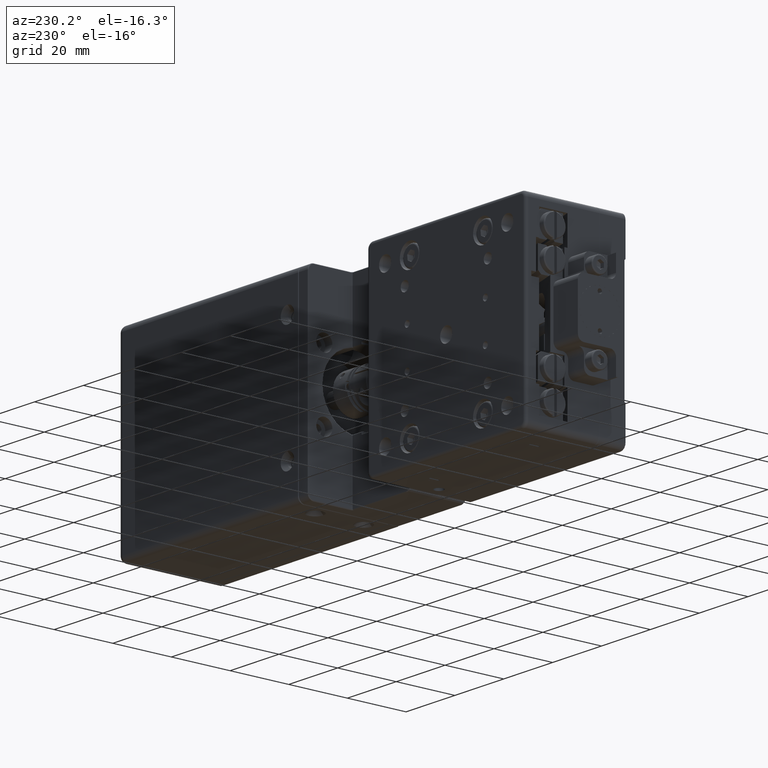
[diagram: clean part render]
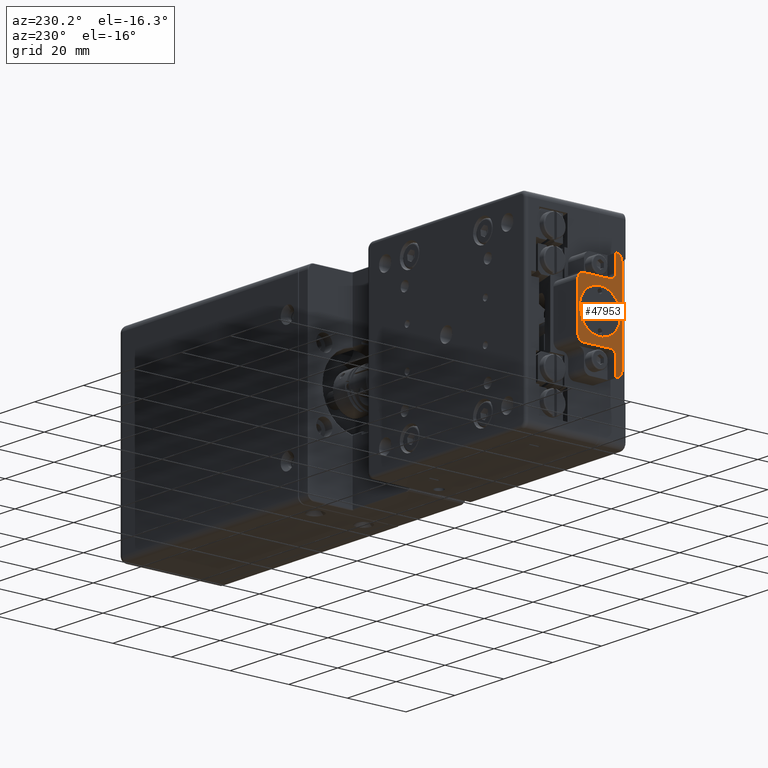
[diagram: same view with one face highlighted and labeled with its STEP entity id]
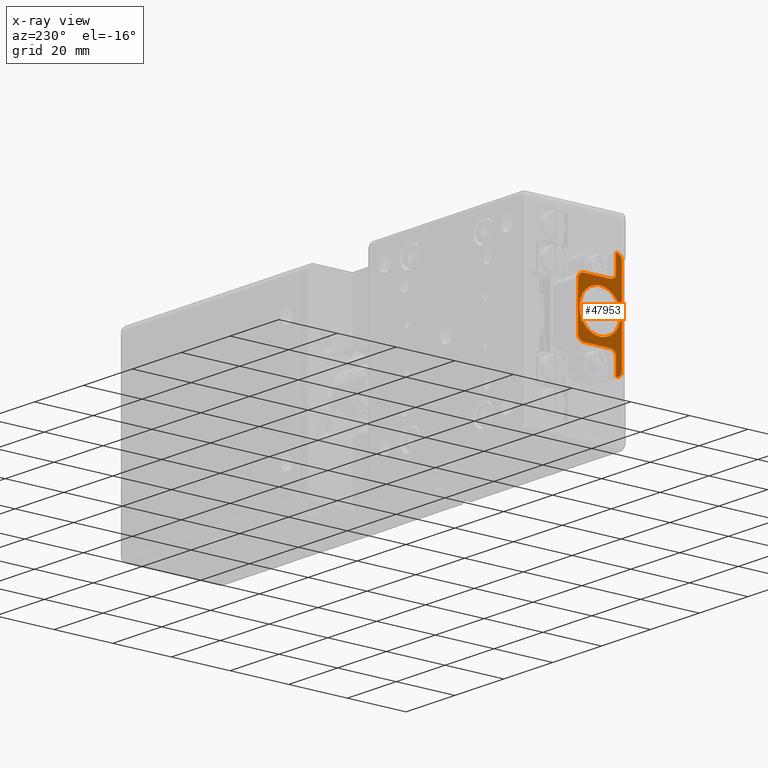
[diagram: x-ray of the same camera — body ghosted, the highlighted face saturated]
A machine part, auxiliary view. The second image highlights one B-rep face of the part: STEP entity #47953.
The next image is the same camera in x-ray: the body ghosted, the highlighted face saturated — about 0% of this face is hidden behind the body in this view.
In plain terms, the highlighted planar face has unit normal (-1, 0, 0).
Its self-contained STEP definition (entity closure, byte-faithful):
#531 = VERTEX_POINT ( 'NONE', #26926 ) ;
#746 = AXIS2_PLACEMENT_3D ( 'NONE', #5061, #44296, #52783 ) ;
#1082 = EDGE_CURVE ( 'NONE', #52681, #42280, #14984, .T. ) ;
#1390 = LINE ( 'NONE', #6464, #43669 ) ;
#2243 = DIRECTION ( 'NONE',  ( -1.000000000000000000, 0.000000000000000000, 0.000000000000000000 ) ) ;
#3576 = CARTESIAN_POINT ( 'NONE',  ( -146.9861517713140131, 8.502210169563721109, -7.500000000000000000 ) ) ;
#3795 = ORIENTED_EDGE ( 'NONE', *, *, #31385, .F. ) ;
#3798 = ORIENTED_EDGE ( 'NONE', *, *, #50495, .F. ) ;
#5021 = CARTESIAN_POINT ( 'NONE',  ( -146.9861517713140131, -4.497789830436274450, -15.00000000000000000 ) ) ;
#5061 = CARTESIAN_POINT ( 'NONE',  ( -146.9861517713140131, -4.497789830436274450, 17.00000000000000000 ) ) ;
#5848 = DIRECTION ( 'NONE',  ( -1.000000000000000000, 0.000000000000000000, 0.000000000000000000 ) ) ;
#6273 = CARTESIAN_POINT ( 'NONE',  ( -146.9861517713140131, 3.002210169563720221, 6.245004513516509326E-14 ) ) ;
#6280 = CIRCLE ( 'NONE', #34240, 2.000000000000000000 ) ;
#6464 = CARTESIAN_POINT ( 'NONE',  ( -146.9861517713140131, -4.497789830436274450, -17.00000000000000000 ) ) ;
#7148 = CIRCLE ( 'NONE', #10741, 2.000000000000000000 ) ;
#7907 = LINE ( 'NONE', #47171, #18089 ) ;
#7908 = LINE ( 'NONE', #19755, #17995 ) ;
#7918 = ORIENTED_EDGE ( 'NONE', *, *, #1082, .F. ) ;
#9033 = EDGE_CURVE ( 'NONE', #46014, #47145, #1390, .T. ) ;
#9430 = EDGE_CURVE ( 'NONE', #47145, #29755, #12128, .T. ) ;
#9466 = CARTESIAN_POINT ( 'NONE',  ( -146.9861517713140131, 8.502210169563721109, 9.500000000000000000 ) ) ;
#9642 = ORIENTED_EDGE ( 'NONE', *, *, #55683, .T. ) ;
#9905 = ORIENTED_EDGE ( 'NONE', *, *, #23745, .F. ) ;
#9984 = VECTOR ( 'NONE', #44553, 1000.000000000000000 ) ;
#10057 = DIRECTION ( 'NONE',  ( 0.000000000000000000, 0.000000000000000000, 1.000000000000000000 ) ) ;
#10741 = AXIS2_PLACEMENT_3D ( 'NONE', #14847, #31798, #10057 ) ;
#10831 = EDGE_CURVE ( 'NONE', #42280, #52681, #49236, .T. ) ;
#11077 = VERTEX_POINT ( 'NONE', #25157 ) ;
#11226 = CIRCLE ( 'NONE', #23820, 2.000000000000000000 ) ;
#12070 = CIRCLE ( 'NONE', #16587, 2.000000000000000000 ) ;
#12128 = CIRCLE ( 'NONE', #46409, 2.000000000000001776 ) ;
#14344 = VERTEX_POINT ( 'NONE', #49217 ) ;
#14535 = CARTESIAN_POINT ( 'NONE',  ( -146.9861517713140131, -2.497789830436279779, 17.00000000000000000 ) ) ;
#14847 = CARTESIAN_POINT ( 'NONE',  ( -146.9861517713140131, 8.502210169563721109, 7.500000000000000000 ) ) ;
#14984 = CIRCLE ( 'NONE', #20368, 7.000000000000000000 ) ;
#15120 = DIRECTION ( 'NONE',  ( 0.000000000000000000, 0.000000000000000000, 1.000000000000000000 ) ) ;
#15700 = AXIS2_PLACEMENT_3D ( 'NONE', #6273, #53170, #27749 ) ;
#16587 = AXIS2_PLACEMENT_3D ( 'NONE', #44130, #36209, #27174 ) ;
#16825 = ORIENTED_EDGE ( 'NONE', *, *, #19441, .T. ) ;
#17385 = EDGE_CURVE ( 'NONE', #42702, #11077, #12070, .T. ) ;
#17995 = VECTOR ( 'NONE', #28543, 1000.000000000000000 ) ;
#18089 = VECTOR ( 'NONE', #21170, 1000.000000000000000 ) ;
#19441 = EDGE_CURVE ( 'NONE', #531, #37889, #11226, .T. ) ;
#19755 = CARTESIAN_POINT ( 'NONE',  ( -146.9861517713140131, 10.50221016956372111, -9.500000000000000000 ) ) ;
#20175 = EDGE_CURVE ( 'NONE', #32698, #46014, #49663, .T. ) ;
#20368 = AXIS2_PLACEMENT_3D ( 'NONE', #32216, #2243, #36735 ) ;
#21170 = DIRECTION ( 'NONE',  ( 0.000000000000000000, 0.000000000000000000, 1.000000000000000000 ) ) ;
#21394 = CARTESIAN_POINT ( 'NONE',  ( -146.9861517713140131, 3.002210169563720221, 7.000000000000000000 ) ) ;
#21688 = FACE_OUTER_BOUND ( 'NONE', #39236, .T. ) ;
#22176 = CARTESIAN_POINT ( 'NONE',  ( -146.9861517713140131, -2.497789830436279779, 17.00000000000000000 ) ) ;
#23067 = DIRECTION ( 'NONE',  ( 0.000000000000000000, 0.000000000000000000, 1.000000000000000000 ) ) ;
#23305 = ORIENTED_EDGE ( 'NONE', *, *, #24135, .T. ) ;
#23745 = EDGE_CURVE ( 'NONE', #32698, #30203, #7907, .T. ) ;
#23820 = AXIS2_PLACEMENT_3D ( 'NONE', #3576, #38881, #34091 ) ;
#24135 = EDGE_CURVE ( 'NONE', #28728, #30203, #6280, .T. ) ;
#25157 = CARTESIAN_POINT ( 'NONE',  ( -146.9861517713140131, -0.4977898304362819992, 9.500000000000000000 ) ) ;
#25891 = ORIENTED_EDGE ( 'NONE', *, *, #28614, .T. ) ;
#26360 = ORIENTED_EDGE ( 'NONE', *, *, #17385, .T. ) ;
#26926 = CARTESIAN_POINT ( 'NONE',  ( -146.9861517713140131, 10.50221016956372111, -7.500000000000000000 ) ) ;
#27174 = DIRECTION ( 'NONE',  ( 0.000000000000000000, 0.000000000000000000, 1.000000000000000000 ) ) ;
#27292 = DIRECTION ( 'NONE',  ( -1.000000000000000000, 0.000000000000000000, 0.000000000000000000 ) ) ;
#27749 = DIRECTION ( 'NONE',  ( 0.000000000000000000, 0.000000000000000000, 1.000000000000000000 ) ) ;
#27858 = CARTESIAN_POINT ( 'NONE',  ( -146.9861517713140131, -0.4977898304362819992, -11.50000000000000000 ) ) ;
#27867 = LINE ( 'NONE', #35806, #9984 ) ;
#28543 = DIRECTION ( 'NONE',  ( 0.000000000000000000, 1.000000000000000000, 3.469446951953615175E-16 ) ) ;
#28614 = EDGE_CURVE ( 'NONE', #14344, #531, #27867, .T. ) ;
#28728 = VERTEX_POINT ( 'NONE', #34561 ) ;
#28863 = ORIENTED_EDGE ( 'NONE', *, *, #51986, .F. ) ;
#29327 = ORIENTED_EDGE ( 'NONE', *, *, #9033, .T. ) ;
#29755 = VERTEX_POINT ( 'NONE', #14535 ) ;
#30203 = VERTEX_POINT ( 'NONE', #33074 ) ;
#30753 = PLANE ( 'NONE',  #746 ) ;
#31385 = EDGE_CURVE ( 'NONE', #42702, #29755, #34071, .T. ) ;
#31614 = DIRECTION ( 'NONE',  ( 0.000000000000000000, 0.000000000000000000, 1.000000000000000000 ) ) ;
#31798 = DIRECTION ( 'NONE',  ( -1.000000000000000000, 0.000000000000000000, 0.000000000000000000 ) ) ;
#32216 = CARTESIAN_POINT ( 'NONE',  ( -146.9861517713140131, 3.002210169563720221, 6.245004513516509326E-14 ) ) ;
#32353 = CARTESIAN_POINT ( 'NONE',  ( -146.9861517713140131, -2.497789830436279779, -15.00000000000000000 ) ) ;
#32698 = VERTEX_POINT ( 'NONE', #50043 ) ;
#32738 = ORIENTED_EDGE ( 'NONE', *, *, #10831, .F. ) ;
#33074 = CARTESIAN_POINT ( 'NONE',  ( -146.9861517713140131, -2.497789830436279779, -11.50000000000000000 ) ) ;
#34071 = LINE ( 'NONE', #22176, #47590 ) ;
#34091 = DIRECTION ( 'NONE',  ( 0.000000000000000000, 0.000000000000000000, 1.000000000000000000 ) ) ;
#34240 = AXIS2_PLACEMENT_3D ( 'NONE', #27858, #45093, #54108 ) ;
#34561 = CARTESIAN_POINT ( 'NONE',  ( -146.9861517713140131, -0.4977898304362819992, -9.500000000000000000 ) ) ;
#35806 = CARTESIAN_POINT ( 'NONE',  ( -146.9861517713140131, 10.50221016956372111, -17.00000000000000000 ) ) ;
#35932 = CARTESIAN_POINT ( 'NONE',  ( -146.9861517713140131, 10.50221016956372111, 9.500000000000000000 ) ) ;
#36209 = DIRECTION ( 'NONE',  ( 1.000000000000000000, 0.000000000000000000, 0.000000000000000000 ) ) ;
#36735 = DIRECTION ( 'NONE',  ( 0.000000000000000000, 0.000000000000000000, 1.000000000000000000 ) ) ;
#36866 = CARTESIAN_POINT ( 'NONE',  ( -146.9861517713140131, 3.002210169563720221, -7.000000000000000000 ) ) ;
#37069 = VECTOR ( 'NONE', #53152, 1000.000000000000000 ) ;
#37889 = VERTEX_POINT ( 'NONE', #39820 ) ;
#38881 = DIRECTION ( 'NONE',  ( -1.000000000000000000, 0.000000000000000000, 0.000000000000000000 ) ) ;
#39236 = EDGE_LOOP ( 'NONE', ( #29327, #40374, #3795, #26360, #28863, #9642, #25891, #16825, #3798, #23305, #9905, #48834 ) ) ;
#39337 = LINE ( 'NONE', #35932, #37069 ) ;
#39820 = CARTESIAN_POINT ( 'NONE',  ( -146.9861517713140131, 8.502210169563721109, -9.500000000000000000 ) ) ;
#40374 = ORIENTED_EDGE ( 'NONE', *, *, #9430, .T. ) ;
#42280 = VERTEX_POINT ( 'NONE', #36866 ) ;
#42702 = VERTEX_POINT ( 'NONE', #46892 ) ;
#43669 = VECTOR ( 'NONE', #31614, 1000.000000000000000 ) ;
#43738 = VERTEX_POINT ( 'NONE', #9466 ) ;
#44130 = CARTESIAN_POINT ( 'NONE',  ( -146.9861517713140131, -0.4977898304362819992, 11.50000000000000000 ) ) ;
#44296 = DIRECTION ( 'NONE',  ( -1.000000000000000000, 0.000000000000000000, 0.000000000000000000 ) ) ;
#44553 = DIRECTION ( 'NONE',  ( 0.000000000000000000, 0.000000000000000000, -1.000000000000000000 ) ) ;
#45093 = DIRECTION ( 'NONE',  ( 1.000000000000000000, 0.000000000000000000, 0.000000000000000000 ) ) ;
#45272 = AXIS2_PLACEMENT_3D ( 'NONE', #32353, #27292, #15120 ) ;
#46014 = VERTEX_POINT ( 'NONE', #5021 ) ;
#46409 = AXIS2_PLACEMENT_3D ( 'NONE', #53026, #5848, #23067 ) ;
#46892 = CARTESIAN_POINT ( 'NONE',  ( -146.9861517713140131, -2.497789830436279779, 11.50000000000000000 ) ) ;
#47145 = VERTEX_POINT ( 'NONE', #54543 ) ;
#47171 = CARTESIAN_POINT ( 'NONE',  ( -146.9861517713140131, -2.497789830436279779, -17.00000000000000000 ) ) ;
#47590 = VECTOR ( 'NONE', #48174, 1000.000000000000000 ) ;
#47712 = FACE_BOUND ( 'NONE', #49984, .T. ) ;
#47953 = ADVANCED_FACE ( 'NONE', ( #47712, #21688 ), #30753, .T. ) ;
#48174 = DIRECTION ( 'NONE',  ( 0.000000000000000000, 0.000000000000000000, 1.000000000000000000 ) ) ;
#48834 = ORIENTED_EDGE ( 'NONE', *, *, #20175, .T. ) ;
#49217 = CARTESIAN_POINT ( 'NONE',  ( -146.9861517713140131, 10.50221016956372111, 7.500000000000000000 ) ) ;
#49236 = CIRCLE ( 'NONE', #15700, 7.000000000000000000 ) ;
#49663 = CIRCLE ( 'NONE', #45272, 2.000000000000000000 ) ;
#49984 = EDGE_LOOP ( 'NONE', ( #7918, #32738 ) ) ;
#50043 = CARTESIAN_POINT ( 'NONE',  ( -146.9861517713140131, -2.497789830436279779, -17.00000000000000000 ) ) ;
#50495 = EDGE_CURVE ( 'NONE', #28728, #37889, #7908, .T. ) ;
#51986 = EDGE_CURVE ( 'NONE', #43738, #11077, #39337, .T. ) ;
#52681 = VERTEX_POINT ( 'NONE', #21394 ) ;
#52783 = DIRECTION ( 'NONE',  ( 0.000000000000000000, 0.000000000000000000, 1.000000000000000000 ) ) ;
#53026 = CARTESIAN_POINT ( 'NONE',  ( -146.9861517713140131, -2.497789830436279779, 15.00000000000000000 ) ) ;
#53152 = DIRECTION ( 'NONE',  ( 0.000000000000000000, -1.000000000000000000, 3.469446951953615175E-16 ) ) ;
#53170 = DIRECTION ( 'NONE',  ( -1.000000000000000000, 0.000000000000000000, 0.000000000000000000 ) ) ;
#54108 = DIRECTION ( 'NONE',  ( 0.000000000000000000, 0.000000000000000000, 1.000000000000000000 ) ) ;
#54543 = CARTESIAN_POINT ( 'NONE',  ( -146.9861517713140131, -4.497789830436274450, 15.00000000000000000 ) ) ;
#55683 = EDGE_CURVE ( 'NONE', #43738, #14344, #7148, .T. ) ;